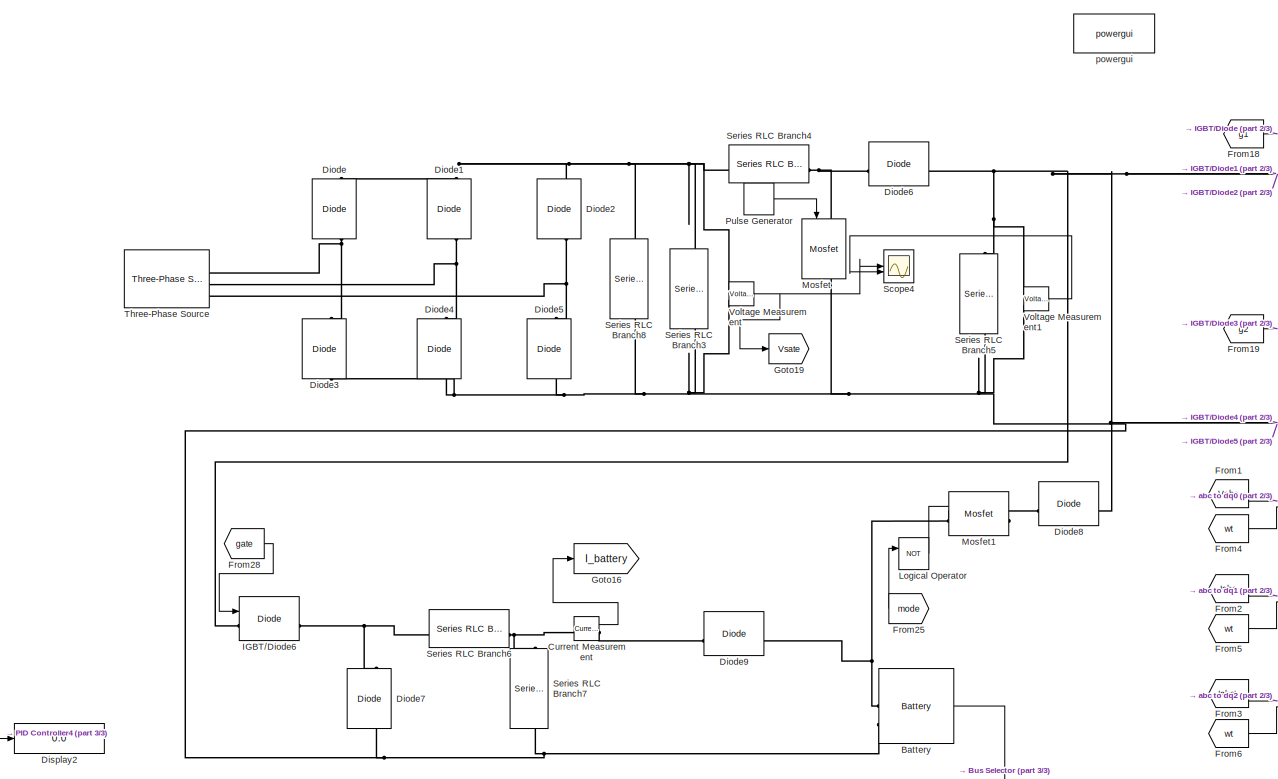
[diagram: root canvas - part 1/3, left side, full height]
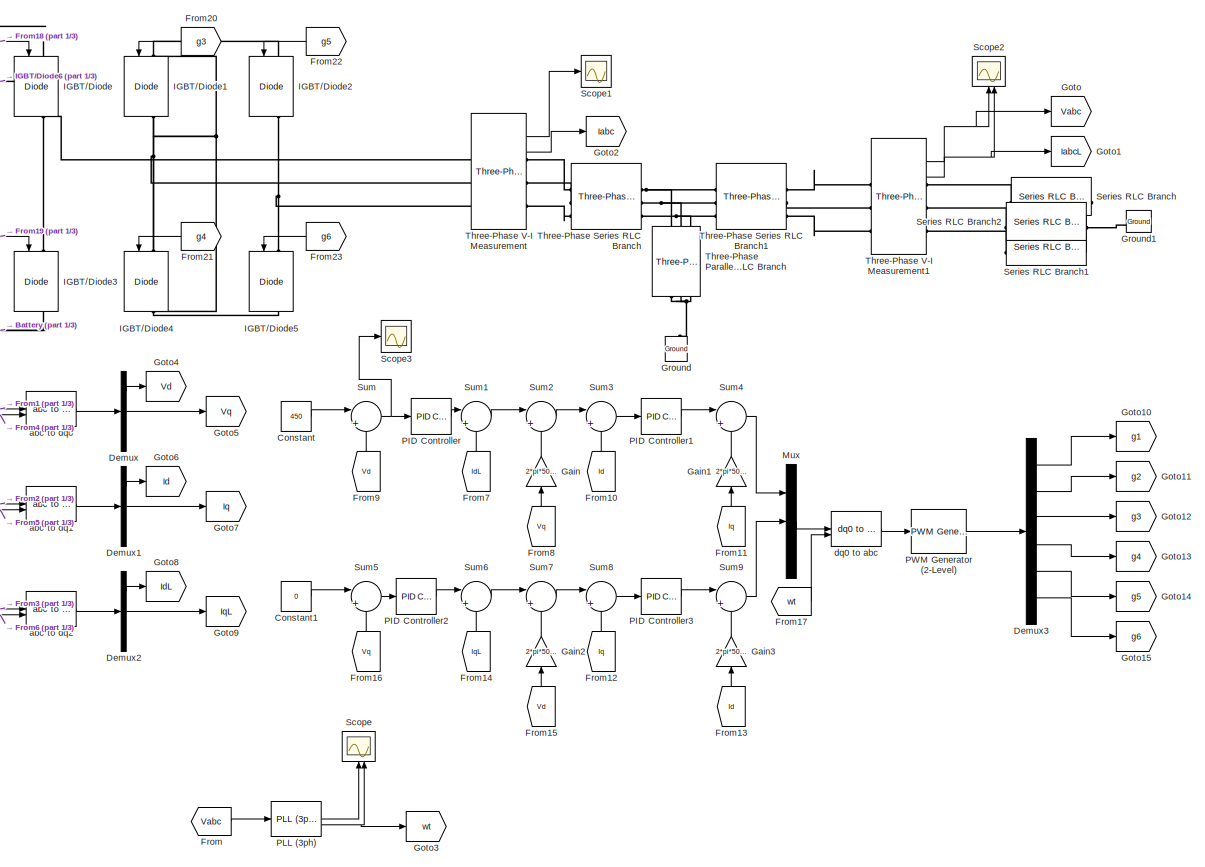
[diagram: root canvas - part 2/3, right side, full height]
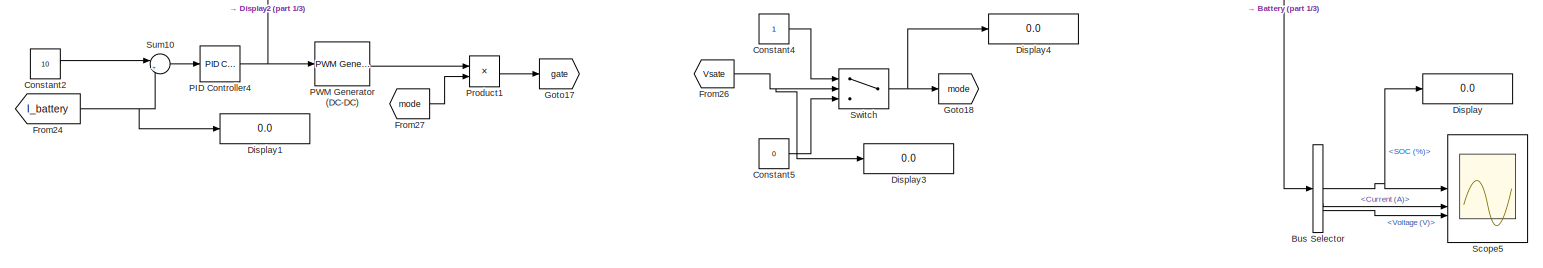
[diagram: root canvas - part 3/3, bottom left region]
MODEL slx_847b8363565b
KIND model
CONFIG AbsTol = auto
CONFIG EnableMultiTasking = off
CONFIG FixedStep = auto
CONFIG MaxStep = auto
CONFIG MinStep = auto
CONFIG RelTol = 1e-3
CONFIG SampleTimeConstraint = Unconstrained
CONFIG SolverName = VariableStepAuto
CONFIG StartTime = 0.0
CONFIG StopTime = 20
BLOCK [Reference] Battery  REF=spsBatteryLib/Battery
  LibrarySourceBlock = sps_lib/Sources/Battery
  SourceBlock = spsBatteryLib/Battery
  SourceType = Battery
BLOCK [BusSelector] Bus Selector
  OutputSignals = SOC (%),Current (A),Voltage (V)
BLOCK [Constant] Constant
  Value = 450
BLOCK [Constant] Constant1
  Value = 0
BLOCK [Constant] Constant2
  Value = 10
BLOCK [Constant] Constant4
BLOCK [Constant] Constant5
  Value = 0
BLOCK [Reference] Current Measurement  REF=spsCurrentMeasurementLib/Current Measurement
  LibrarySourceBlock = sps_lib/Sensors and Measurements/Current Measurement
  SourceBlock = spsCurrentMeasurementLib/Current Measurement
  SourceType = Current Measurement
  UserDataPersistent = on
BLOCK [Demux] Demux
  Outputs = 3
BLOCK [Demux] Demux1
  Outputs = 3
BLOCK [Demux] Demux2
  Outputs = 3
BLOCK [Demux] Demux3
  Outputs = 6
BLOCK [Reference] Diode  REF=spsDiodeLib/Diode
  LibrarySourceBlock = sps_lib/Power Electronics/Diode
  NameLocation = right
  SourceBlock = spsDiodeLib/Diode
  SourceType = Diode
BLOCK [Reference] Diode1  REF=spsDiodeLib/Diode
  LibrarySourceBlock = sps_lib/Power Electronics/Diode
  NameLocation = right
  SourceBlock = spsDiodeLib/Diode
  SourceType = Diode
BLOCK [Reference] Diode2  REF=spsDiodeLib/Diode
  LibrarySourceBlock = sps_lib/Power Electronics/Diode
  NameLocation = right
  SourceBlock = spsDiodeLib/Diode
  SourceType = Diode
BLOCK [Reference] Diode3  REF=spsDiodeLib/Diode
  LibrarySourceBlock = sps_lib/Power Electronics/Diode
  NameLocation = right
  SourceBlock = spsDiodeLib/Diode
  SourceType = Diode
BLOCK [Reference] Diode4  REF=spsDiodeLib/Diode
  LibrarySourceBlock = sps_lib/Power Electronics/Diode
  NameLocation = right
  SourceBlock = spsDiodeLib/Diode
  SourceType = Diode
BLOCK [Reference] Diode5  REF=spsDiodeLib/Diode
  LibrarySourceBlock = sps_lib/Power Electronics/Diode
  NameLocation = right
  SourceBlock = spsDiodeLib/Diode
  SourceType = Diode
BLOCK [Reference] Diode6  REF=spsDiodeLib/Diode
  LibrarySourceBlock = sps_lib/Power Electronics/Diode
  SourceBlock = spsDiodeLib/Diode
  SourceType = Diode
BLOCK [Reference] Diode7  REF=spsDiodeLib/Diode
  LibrarySourceBlock = sps_lib/Power Electronics/Diode
  NameLocation = right
  SourceBlock = spsDiodeLib/Diode
  SourceType = Diode
BLOCK [Reference] Diode8  REF=spsDiodeLib/Diode
  LibrarySourceBlock = sps_lib/Power Electronics/Diode
  SourceBlock = spsDiodeLib/Diode
  SourceType = Diode
BLOCK [Reference] Diode9  REF=spsDiodeLib/Diode
  LibrarySourceBlock = sps_lib/Power Electronics/Diode
  SourceBlock = spsDiodeLib/Diode
  SourceType = Diode
BLOCK [Display] Display
  Decimation = 1
BLOCK [Display] Display1
  Decimation = 1
BLOCK [Display] Display2
  Decimation = 1
BLOCK [Display] Display3
  Decimation = 1
BLOCK [Display] Display4
  Decimation = 1
BLOCK [From] From
  GotoTag = Vabc
BLOCK [From] From1
  GotoTag = Vabc
BLOCK [From] From10
  GotoTag = Id
  NameLocation = right
BLOCK [From] From11
  GotoTag = Iq
  NameLocation = right
BLOCK [From] From12
  GotoTag = Iq
  NameLocation = right
BLOCK [From] From13
  GotoTag = Id
  NameLocation = right
BLOCK [From] From14
  GotoTag = IqL
  NameLocation = right
BLOCK [From] From15
  GotoTag = Vd
  NameLocation = right
BLOCK [From] From16
  GotoTag = Vq
  NameLocation = right
BLOCK [From] From17
  GotoTag = wt
BLOCK [From] From18
  GotoTag = g1
BLOCK [From] From19
  GotoTag = g2
BLOCK [From] From2
  GotoTag = Iabc
BLOCK [From] From20
  GotoTag = g3
  NameLocation = top
BLOCK [From] From21
  GotoTag = g4
  NameLocation = top
BLOCK [From] From22
  GotoTag = g5
  NameLocation = top
BLOCK [From] From23
  GotoTag = g6
  NameLocation = top
BLOCK [From] From24
  GotoTag = I_battery
BLOCK [From] From25
  GotoTag = mode
  NameLocation = top
BLOCK [From] From26
  GotoTag = Vsate
BLOCK [From] From27
  GotoTag = mode
BLOCK [From] From28
  GotoTag = gate
BLOCK [From] From3
  GotoTag = IabcL
BLOCK [From] From4
  GotoTag = wt
BLOCK [From] From5
  GotoTag = wt
BLOCK [From] From6
  GotoTag = wt
BLOCK [From] From7
  GotoTag = IdL
  NameLocation = right
BLOCK [From] From8
  GotoTag = Vq
  NameLocation = right
BLOCK [From] From9
  GotoTag = Vd
  NameLocation = right
BLOCK [Gain] Gain
  Gain = 2*pi*50*9.94e-6
  NameLocation = right
BLOCK [Gain] Gain1
  Gain = 2*pi*50*10.2e-3
  NameLocation = right
BLOCK [Gain] Gain2
  Gain = 2*pi*50*9.94e-6
  NameLocation = right
BLOCK [Gain] Gain3
  Gain = 2*pi*50*10.2e-3
  NameLocation = right
BLOCK [Goto] Goto
  GotoTag = Vabc
BLOCK [Goto] Goto1
  GotoTag = IabcL
BLOCK [Goto] Goto10
  GotoTag = g1
BLOCK [Goto] Goto11
  GotoTag = g2
BLOCK [Goto] Goto12
  GotoTag = g3
BLOCK [Goto] Goto13
  GotoTag = g4
BLOCK [Goto] Goto14
  GotoTag = g5
BLOCK [Goto] Goto15
  GotoTag = g6
BLOCK [Goto] Goto16
  GotoTag = I_battery
BLOCK [Goto] Goto17
  GotoTag = gate
BLOCK [Goto] Goto18
  GotoTag = mode
BLOCK [Goto] Goto19
  GotoTag = Vsate
BLOCK [Goto] Goto2
  GotoTag = Iabc
BLOCK [Goto] Goto3
  GotoTag = wt
BLOCK [Goto] Goto4
  GotoTag = Vd
BLOCK [Goto] Goto5
  GotoTag = Vq
BLOCK [Goto] Goto6
  GotoTag = Id
BLOCK [Goto] Goto7
  GotoTag = Iq
BLOCK [Goto] Goto8
  GotoTag = IdL
BLOCK [Goto] Goto9
  GotoTag = IqL
BLOCK [Reference] Ground  REF=spsGroundLib/Ground
  LibrarySourceBlock = sps_lib/Utilities/Ground
  NameLocation = right
  SourceBlock = spsGroundLib/Ground
  SourceType = Ground
BLOCK [Reference] Ground1  REF=spsGroundLib/Ground
  LibrarySourceBlock = sps_lib/Utilities/Ground
  NameLocation = top
  SourceBlock = spsGroundLib/Ground
  SourceType = Ground
BLOCK [Reference] IGBT//Diode  REF=spsIGBTDiodeLib/IGBT//Diode
  NameLocation = left
  SourceBlock = spsIGBTDiodeLib/IGBT//Diode
  SourceType = IGBT/Diode
BLOCK [Reference] IGBT//Diode1  REF=spsIGBTDiodeLib/IGBT//Diode
  NameLocation = left
  SourceBlock = spsIGBTDiodeLib/IGBT//Diode
  SourceType = IGBT/Diode
BLOCK [Reference] IGBT//Diode2  REF=spsIGBTDiodeLib/IGBT//Diode
  NameLocation = left
  SourceBlock = spsIGBTDiodeLib/IGBT//Diode
  SourceType = IGBT/Diode
BLOCK [Reference] IGBT//Diode3  REF=spsIGBTDiodeLib/IGBT//Diode
  NameLocation = left
  SourceBlock = spsIGBTDiodeLib/IGBT//Diode
  SourceType = IGBT/Diode
BLOCK [Reference] IGBT//Diode4  REF=spsIGBTDiodeLib/IGBT//Diode
  NameLocation = left
  SourceBlock = spsIGBTDiodeLib/IGBT//Diode
  SourceType = IGBT/Diode
BLOCK [Reference] IGBT//Diode5  REF=spsIGBTDiodeLib/IGBT//Diode
  NameLocation = left
  SourceBlock = spsIGBTDiodeLib/IGBT//Diode
  SourceType = IGBT/Diode
BLOCK [Reference] IGBT//Diode6  REF=spsIGBTDiodeLib/IGBT//Diode
  NameLocation = top
  SourceBlock = spsIGBTDiodeLib/IGBT//Diode
  SourceType = IGBT/Diode
BLOCK [Logic] Logical Operator
  AllPortsSameDT = off
  Operator = NOT
  OutDataTypeStr = boolean
BLOCK [Reference] Mosfet  REF=spsMosfetLib/Mosfet
  LibrarySourceBlock = sps_lib/Power Electronics/Mosfet
  NameLocation = left
  SourceBlock = spsMosfetLib/Mosfet
  SourceType = Mosfet
BLOCK [Reference] Mosfet1  REF=spsMosfetLib/Mosfet
  LibrarySourceBlock = sps_lib/Power Electronics/Mosfet
  SourceBlock = spsMosfetLib/Mosfet
  SourceType = Mosfet
BLOCK [Mux] Mux
  DisplayOption = bar
  Inputs = 3
BLOCK [Reference] PID Controller  REF=slpidlib/PID Controller
  LibrarySourceBlock = simulink/Continuous/PID Controller
  SourceBlock = slpidlib/PID Controller
  SourceType = PID 1dof
BLOCK [Reference] PID Controller1  REF=slpidlib/PID Controller
  LibrarySourceBlock = simulink/Continuous/PID Controller
  SourceBlock = slpidlib/PID Controller
  SourceType = PID 1dof
BLOCK [Reference] PID Controller2  REF=slpidlib/PID Controller
  LibrarySourceBlock = simulink/Continuous/PID Controller
  SourceBlock = slpidlib/PID Controller
  SourceType = PID 1dof
BLOCK [Reference] PID Controller3  REF=slpidlib/PID Controller
  LibrarySourceBlock = simulink/Continuous/PID Controller
  SourceBlock = slpidlib/PID Controller
  SourceType = PID 1dof
BLOCK [Reference] PID Controller4  REF=slpidlib/PID Controller
  LibrarySourceBlock = simulink/Continuous/PID Controller
  SourceBlock = slpidlib/PID Controller
  SourceType = PID 1dof
BLOCK [Reference] PLL (3ph)  REF=spsPLL3phLib/PLL
(3ph)
  LibrarySourceBlock = sps_lib/Control/PLL\n(3ph)
  SourceBlock = spsPLL3phLib/PLL\n(3ph)
  SourceType = PLL (3ph)
BLOCK [Reference] PWM Generator (2-Level)  REF=spsPWMGenerator2LevelLib/PWM Generator
(2-Level)
  LibrarySourceBlock = sps_lib/Power Electronics/Power Electronics Control/PWM Generator\n(2-Level)
  SourceBlock = spsPWMGenerator2LevelLib/PWM Generator\n(2-Level)
  SourceType = PWM Generator (2-Level)
BLOCK [Reference] PWM Generator (DC-DC)  REF=spsPWMGeneratorDCDCLib/PWM Generator
(DC-DC)
  LibrarySourceBlock = sps_lib/Power Electronics/Power Electronics Control/PWM Generator\n(DC-DC)
  SourceBlock = spsPWMGeneratorDCDCLib/PWM Generator\n(DC-DC)
  SourceType = PWM Generator (DC-DC)
BLOCK [Product] Product1
BLOCK [DiscretePulseGenerator] Pulse Generator
  Period = 100e-6
  PulseType = Time based
  PulseWidth = 41
BLOCK [Scope] Scope
  Floating = off
  NameLocation = right
  NumInputPorts = 2
  ScopeSpecificationString = Simulink.scopes.TimeScopeBlockCfg('CurrentConfiguration', extmgr.ConfigurationSet(extmgr.Configuration('Core','General UI',true),extmgr.Configuration('Core','Source UI',true),extmgr.Configuration('Sources','WiredSimulink',true),extmgr.Configuration('Visuals','Time Domain',true,'SerializedDisplays',{struct('MinYLimReal','49.97987','MaxYLimReal','50.18119','YLabelReal','','MinYLimMag','49.97987','Ma...<+2101ch>
BLOCK [Scope] Scope1
  Floating = off
  NumInputPorts = 1
  ScopeSpecificationString = Simulink.scopes.TimeScopeBlockCfg('CurrentConfiguration', extmgr.ConfigurationSet(extmgr.Configuration('Core','General UI',true),extmgr.Configuration('Core','Source UI',true),extmgr.Configuration('Sources','WiredSimulink',true,'DataLoggingVariableName','ScopeData1'),extmgr.Configuration('Visuals','Time Domain',true,'SerializedDisplays',{struct('MinYLimReal','-886.01887','MaxYLimReal','401.27133','...<+1595ch>
BLOCK [Scope] Scope2
  Floating = off
  NameLocation = right
  NumInputPorts = 2
  ScopeSpecificationString = Simulink.scopes.TimeScopeBlockCfg('CurrentConfiguration', extmgr.ConfigurationSet(extmgr.Configuration('Core','General UI',true),extmgr.Configuration('Core','Source UI',true),extmgr.Configuration('Sources','WiredSimulink',true,'DataLoggingVariableName','ScopeData2'),extmgr.Configuration('Visuals','Time Domain',true,'SerializedDisplays',{struct('MinYLimReal','-619.58364','MaxYLimReal','615.36564','...<+2538ch>
BLOCK [Scope] Scope3
  Floating = off
  NumInputPorts = 1
  ScopeSpecificationString = Simulink.scopes.TimeScopeBlockCfg('CurrentConfiguration', extmgr.ConfigurationSet(extmgr.Configuration('Core','General UI',true),extmgr.Configuration('Core','Source UI',true),extmgr.Configuration('Sources','WiredSimulink',true,'DataLoggingVariableName','ScopeData1'),extmgr.Configuration('Visuals','Time Domain',true,'SerializedDisplays',{struct('MinYLimReal','-51.83835','MaxYLimReal','375.77376','Y...<+1480ch>
BLOCK [Scope] Scope4
  Floating = off
  NumInputPorts = 2
  ScopeSpecificationString = Simulink.scopes.TimeScopeBlockCfg('CurrentConfiguration', extmgr.ConfigurationSet(extmgr.Configuration('Core','General UI',true),extmgr.Configuration('Core','Source UI',true),extmgr.Configuration('Sources','WiredSimulink',true,'DataLoggingVariableName','ScopeData1'),extmgr.Configuration('Visuals','Time Domain',true,'SerializedDisplays',{struct('MinYLimReal','432.44905','MaxYLimReal','588.79361','Y...<+2288ch>
BLOCK [Scope] Scope5
  Floating = off
  NumInputPorts = 3
  ScopeSpecificationString = Simulink.scopes.TimeScopeBlockCfg('CurrentConfiguration', extmgr.ConfigurationSet(extmgr.Configuration('Core','General UI',true),extmgr.Configuration('Core','Source UI',true),extmgr.Configuration('Sources','WiredSimulink',true,'DataLoggingVariableName','ScopeData1'),extmgr.Configuration('Visuals','Time Domain',true,'SerializedDisplays',{struct('MinYLimReal','79.94991','MaxYLimReal','80.00557','YLa...<+3091ch>
BLOCK [Reference] Series RLC Branch  REF=spsSeriesRLCBranchLib/Series RLC Branch
  LibrarySourceBlock = sps_lib/Passives/Series RLC Branch
  SourceBlock = spsSeriesRLCBranchLib/Series RLC Branch
  SourceType = Series RLC Branch
BLOCK [Reference] Series RLC Branch1  REF=spsSeriesRLCBranchLib/Series RLC Branch
  LibrarySourceBlock = sps_lib/Passives/Series RLC Branch
  SourceBlock = spsSeriesRLCBranchLib/Series RLC Branch
  SourceType = Series RLC Branch
BLOCK [Reference] Series RLC Branch2  REF=spsSeriesRLCBranchLib/Series RLC Branch
  LibrarySourceBlock = sps_lib/Passives/Series RLC Branch
  SourceBlock = spsSeriesRLCBranchLib/Series RLC Branch
  SourceType = Series RLC Branch
BLOCK [Reference] Series RLC Branch3  REF=spsSeriesRLCBranchLib/Series RLC Branch
  LibrarySourceBlock = sps_lib/Passives/Series RLC Branch
  NameLocation = left
  SourceBlock = spsSeriesRLCBranchLib/Series RLC Branch
  SourceType = Series RLC Branch
BLOCK [Reference] Series RLC Branch4  REF=spsSeriesRLCBranchLib/Series RLC Branch
  LibrarySourceBlock = sps_lib/Passives/Series RLC Branch
  SourceBlock = spsSeriesRLCBranchLib/Series RLC Branch
  SourceType = Series RLC Branch
BLOCK [Reference] Series RLC Branch5  REF=spsSeriesRLCBranchLib/Series RLC Branch
  LibrarySourceBlock = sps_lib/Passives/Series RLC Branch
  NameLocation = left
  SourceBlock = spsSeriesRLCBranchLib/Series RLC Branch
  SourceType = Series RLC Branch
BLOCK [Reference] Series RLC Branch6  REF=spsSeriesRLCBranchLib/Series RLC Branch
  LibrarySourceBlock = sps_lib/Passives/Series RLC Branch
  SourceBlock = spsSeriesRLCBranchLib/Series RLC Branch
  SourceType = Series RLC Branch
BLOCK [Reference] Series RLC Branch7  REF=spsSeriesRLCBranchLib/Series RLC Branch
  LibrarySourceBlock = sps_lib/Passives/Series RLC Branch
  NameLocation = left
  SourceBlock = spsSeriesRLCBranchLib/Series RLC Branch
  SourceType = Series RLC Branch
BLOCK [Reference] Series RLC Branch8  REF=spsSeriesRLCBranchLib/Series RLC Branch
  LibrarySourceBlock = sps_lib/Passives/Series RLC Branch
  NameLocation = left
  SourceBlock = spsSeriesRLCBranchLib/Series RLC Branch
  SourceType = Series RLC Branch
BLOCK [Sum] Sum
  Inputs = |+-
BLOCK [Sum] Sum1
  Inputs = |+-
BLOCK [Sum] Sum10
  Inputs = |+-
BLOCK [Sum] Sum2
  Inputs = |+-
BLOCK [Sum] Sum3
  Inputs = |+-
BLOCK [Sum] Sum4
  Inputs = |+-
BLOCK [Sum] Sum5
  Inputs = |+-
BLOCK [Sum] Sum6
  Inputs = |++
BLOCK [Sum] Sum7
  Inputs = |++
BLOCK [Sum] Sum8
  Inputs = |+-
BLOCK [Sum] Sum9
  Inputs = |++
BLOCK [Switch] Switch
  InputSameDT = off
  SaturateOnIntegerOverflow = off
  Threshold = 500
BLOCK [Reference] Three-Phase Parallel RLC Branch  REF=spsThreePhaseParallelRLCBranchLib/Three-Phase
Parallel RLC Branch
  AttributesFormatString = \n
  LibrarySourceBlock = sps_lib/Passives/Three-Phase\nParallel RLC Branch
  NameLocation = left
  SourceBlock = spsThreePhaseParallelRLCBranchLib/Three-Phase\nParallel RLC Branch
  SourceType = Three-Phase Parallel RLC Branch
BLOCK [Reference] Three-Phase Series RLC Branch  REF=spsThreePhaseSeriesRLCBranchLib/Three-Phase
Series RLC Branch
  AttributesFormatString = \n
  LibrarySourceBlock = sps_lib/Passives/Three-Phase\nSeries RLC Branch
  SourceBlock = spsThreePhaseSeriesRLCBranchLib/Three-Phase\nSeries RLC Branch
  SourceType = Three-Phase Series RLC Branch
BLOCK [Reference] Three-Phase Series RLC Branch1  REF=spsThreePhaseSeriesRLCBranchLib/Three-Phase
Series RLC Branch
  AttributesFormatString = \n
  LibrarySourceBlock = sps_lib/Passives/Three-Phase\nSeries RLC Branch
  SourceBlock = spsThreePhaseSeriesRLCBranchLib/Three-Phase\nSeries RLC Branch
  SourceType = Three-Phase Series RLC Branch
BLOCK [Reference] Three-Phase Source  REF=spsThreePhaseSourceLib/Three-Phase Source
  LibrarySourceBlock = sps_lib/Sources/Three-Phase Source
  SourceBlock = spsThreePhaseSourceLib/Three-Phase Source
  SourceType = Three-Phase Source
BLOCK [Reference] Three-Phase V-I Measurement  REF=spsThreePhaseVIMeasurementLib/Three-Phase
V-I Measurement
  LibrarySourceBlock = sps_lib/Sensors and Measurements/Three-Phase\nV-I Measurement
  SourceBlock = spsThreePhaseVIMeasurementLib/Three-Phase\nV-I Measurement
  SourceType = Three-Phase VI Measurement
BLOCK [Reference] Three-Phase V-I Measurement1  REF=spsThreePhaseVIMeasurementLib/Three-Phase
V-I Measurement
  LibrarySourceBlock = sps_lib/Sensors and Measurements/Three-Phase\nV-I Measurement
  SourceBlock = spsThreePhaseVIMeasurementLib/Three-Phase\nV-I Measurement
  SourceType = Three-Phase VI Measurement
BLOCK [Reference] Voltage Measurement  REF=spsVoltageMeasurementLib/Voltage Measurement
  LibrarySourceBlock = sps_lib/Sensors and Measurements/Voltage Measurement
  SourceBlock = spsVoltageMeasurementLib/Voltage Measurement
  SourceType = Voltage Measurement
  UserDataPersistent = on
BLOCK [Reference] Voltage Measurement1  REF=spsVoltageMeasurementLib/Voltage Measurement
  LibrarySourceBlock = sps_lib/Sensors and Measurements/Voltage Measurement
  SourceBlock = spsVoltageMeasurementLib/Voltage Measurement
  SourceType = Voltage Measurement
  UserDataPersistent = on
BLOCK [Reference] abc to dq0  REF=spsabctodq0Lib/abc to dq0
  LibrarySourceBlock = sps_lib/Control/abc to dq0
  SourceBlock = spsabctodq0Lib/abc to dq0
  SourceType = abc to dq0 Transformation
BLOCK [Reference] abc to dq1  REF=spsabctodq0Lib/abc to dq0
  LibrarySourceBlock = sps_lib/Control/abc to dq0
  SourceBlock = spsabctodq0Lib/abc to dq0
  SourceType = abc to dq0 Transformation
BLOCK [Reference] abc to dq2  REF=spsabctodq0Lib/abc to dq0
  LibrarySourceBlock = sps_lib/Control/abc to dq0
  SourceBlock = spsabctodq0Lib/abc to dq0
  SourceType = abc to dq0 Transformation
BLOCK [Reference] dq0 to abc  REF=spsdq0toabcLib/dq0 to abc
  LibrarySourceBlock = sps_lib/Control/dq0 to abc
  SourceBlock = spsdq0toabcLib/dq0 to abc
  SourceType = dq0 to abc Transformation
BLOCK [Reference] powergui  REF=sps_lib/powergui
  LibrarySourceBlock = sps_lib/powergui
  Priority = 1
  SourceBlock = sps_lib/powergui
  SourceType = PSB option menu block
LINE Battery:1 -> Bus Selector:1
NET Bus Selector:1 -> Display:1, Scope5:1
LINE Bus Selector:2 -> Scope5:2
LINE Bus Selector:3 -> Scope5:3
LINE Constant1:1 -> Sum5:1
LINE Constant2:1 -> Sum10:1
LINE Constant4:1 -> Switch:1
LINE Constant5:1 -> Switch:3
LINE Constant:1 -> Sum:1
LINE Current Measurement:1 -> Goto16:1
LINE Demux1:1 -> Goto6:1
LINE Demux1:2 -> Goto7:1
LINE Demux2:1 -> Goto8:1
LINE Demux2:2 -> Goto9:1
LINE Demux3:1 -> Goto10:1
LINE Demux3:2 -> Goto11:1
LINE Demux3:3 -> Goto12:1
LINE Demux3:4 -> Goto13:1
LINE Demux3:5 -> Goto14:1
LINE Demux3:6 -> Goto15:1
LINE Demux:1 -> Goto4:1
LINE Demux:2 -> Goto5:1
LINE From10:1 -> Sum3:2
LINE From11:1 -> Gain1:1
LINE From12:1 -> Sum8:2
LINE From13:1 -> Gain3:1
LINE From14:1 -> Sum6:2
LINE From15:1 -> Gain2:1
LINE From16:1 -> Sum5:2
LINE From17:1 -> dq0 to abc:2
LINE From18:1 -> IGBT//Diode:1
LINE From19:1 -> IGBT//Diode3:1
LINE From1:1 -> abc to dq0:1
LINE From20:1 -> IGBT//Diode1:1
LINE From21:1 -> IGBT//Diode4:1
LINE From22:1 -> IGBT//Diode2:1
LINE From23:1 -> IGBT//Diode5:1
NET From24:1 -> Display1:1, Sum10:2
LINE From25:1 -> Logical Operator:1
NET From26:1 -> Display3:1, Switch:2
LINE From27:1 -> Product1:2
LINE From28:1 -> IGBT//Diode6:1
LINE From2:1 -> abc to dq1:1
LINE From3:1 -> abc to dq2:1
LINE From4:1 -> abc to dq0:2
LINE From5:1 -> abc to dq1:2
LINE From6:1 -> abc to dq2:2
LINE From7:1 -> Sum1:2
LINE From8:1 -> Gain:1
LINE From9:1 -> Sum:2
LINE From:1 -> PLL (3ph):1
LINE Gain1:1 -> Sum4:2
LINE Gain2:1 -> Sum7:2
LINE Gain3:1 -> Sum9:2
LINE Gain:1 -> Sum2:2
LINE Logical Operator:1 -> Mosfet1:1
LINE Mux:1 -> dq0 to abc:1
LINE PID Controller1:1 -> Sum4:1
LINE PID Controller2:1 -> Sum6:1
LINE PID Controller3:1 -> Sum9:1
NET PID Controller4:1 -> Display2:1, PWM Generator (DC-DC):1
LINE PID Controller:1 -> Sum1:1
LINE PLL (3ph):1 -> Scope:1
NET PLL (3ph):2 -> Goto3:1, Scope:2
LINE PWM Generator (2-Level):1 -> Demux3:1
LINE PWM Generator (DC-DC):1 -> Product1:1
LINE Product1:1 -> Goto17:1
LINE Pulse Generator:1 -> Mosfet:1
LINE Sum10:1 -> PID Controller4:1
LINE Sum1:1 -> Sum2:1
LINE Sum2:1 -> Sum3:1
LINE Sum3:1 -> PID Controller1:1
LINE Sum4:1 -> Mux:1
LINE Sum5:1 -> PID Controller2:1
LINE Sum6:1 -> Sum7:1
LINE Sum7:1 -> Sum8:1
LINE Sum8:1 -> PID Controller3:1
LINE Sum9:1 -> Mux:2
NET Sum:1 -> PID Controller:1, Scope3:1
NET Switch:1 -> Display4:1, Goto18:1
NET Three-Phase V-I Measurement1:1 -> Goto:1, Scope2:1
NET Three-Phase V-I Measurement1:2 -> Goto1:1, Scope2:2
LINE Three-Phase V-I Measurement:1 -> Scope1:1
LINE Three-Phase V-I Measurement:2 -> Goto2:1
LINE Voltage Measurement1:1 -> Scope4:2
NET Voltage Measurement:1 -> Goto19:1, Scope4:1
LINE abc to dq0:1 -> Demux:1
LINE abc to dq1:1 -> Demux1:1
LINE abc to dq2:1 -> Demux2:1
LINE dq0 to abc:1 -> PWM Generator (2-Level):1
PNET net1: Battery:LConn1 -- Diode9:RConn1 -- Mosfet1:LConn1
PNET net2: Battery:LConn2 -- Diode3:LConn1 -- Diode4:LConn1 -- Diode5:LConn1 -- Diode7:LConn1 -- IGBT//Diode3:RConn1 -- IGBT//Diode4:RConn1 -- IGBT//Diode5:RConn1 -- Mosfet:RConn1 -- Series RLC Branch3:RConn1 -- Series RLC Branch5:RConn1 -- Series RLC Branch7:RConn1 -- Series RLC Branch8:RConn1 -- Voltage Measurement1:LConn2 -- Voltage Measurement:LConn2
PNET net3: Current Measurement:LConn1 -- Series RLC Branch6:RConn1 -- Series RLC Branch7:LConn1
PLINE Current Measurement:RConn1 -- Diode9:LConn1
PNET net4: Diode1:LConn1 -- Diode4:RConn1 -- Three-Phase Source:RConn2
PNET net5: Diode1:RConn1 -- Diode2:RConn1 -- Diode:RConn1 -- Series RLC Branch3:LConn1 -- Series RLC Branch4:LConn1 -- Series RLC Branch8:LConn1 -- Voltage Measurement:LConn1
PNET net6: Diode2:LConn1 -- Diode5:RConn1 -- Three-Phase Source:RConn3
PNET net7: Diode3:RConn1 -- Diode:LConn1 -- Three-Phase Source:RConn1
PNET net8: Diode6:LConn1 -- Mosfet:LConn1 -- Series RLC Branch4:RConn1
PNET net9: Diode6:RConn1 -- Diode8:RConn1 -- IGBT//Diode1:LConn1 -- IGBT//Diode2:LConn1 -- IGBT//Diode6:LConn1 -- IGBT//Diode:LConn1 -- Series RLC Branch5:LConn1 -- Voltage Measurement1:LConn1
PNET net10: Diode7:RConn1 -- IGBT//Diode6:RConn1 -- Series RLC Branch6:LConn1
PLINE Diode8:LConn1 -- Mosfet1:RConn1
PNET net11: Ground1:LConn1 -- Series RLC Branch1:RConn1 -- Series RLC Branch2:RConn1 -- Series RLC Branch:RConn1
PNET net12: Ground:LConn1 -- Three-Phase Parallel RLC Branch:RConn1 -- Three-Phase Parallel RLC Branch:RConn2 -- Three-Phase Parallel RLC Branch:RConn3
PNET net13: IGBT//Diode1:RConn1 -- IGBT//Diode4:LConn1 -- Three-Phase V-I Measurement:LConn2
PNET net14: IGBT//Diode2:RConn1 -- IGBT//Diode5:LConn1 -- Three-Phase V-I Measurement:LConn3
PNET net15: IGBT//Diode3:LConn1 -- IGBT//Diode:RConn1 -- Three-Phase V-I Measurement:LConn1
PLINE Series RLC Branch1:LConn1 -- Three-Phase V-I Measurement1:RConn3
PLINE Series RLC Branch2:LConn1 -- Three-Phase V-I Measurement1:RConn2
PLINE Series RLC Branch:LConn1 -- Three-Phase V-I Measurement1:RConn1
PNET net16: Three-Phase Parallel RLC Branch:LConn1 -- Three-Phase Series RLC Branch1:LConn1 -- Three-Phase Series RLC Branch:RConn1
PNET net17: Three-Phase Parallel RLC Branch:LConn2 -- Three-Phase Series RLC Branch1:LConn2 -- Three-Phase Series RLC Branch:RConn2
PNET net18: Three-Phase Parallel RLC Branch:LConn3 -- Three-Phase Series RLC Branch1:LConn3 -- Three-Phase Series RLC Branch:RConn3
PLINE Three-Phase Series RLC Branch1:RConn1 -- Three-Phase V-I Measurement1:LConn1
PLINE Three-Phase Series RLC Branch1:RConn2 -- Three-Phase V-I Measurement1:LConn2
PLINE Three-Phase Series RLC Branch1:RConn3 -- Three-Phase V-I Measurement1:LConn3
PLINE Three-Phase Series RLC Branch:LConn1 -- Three-Phase V-I Measurement:RConn1
PLINE Three-Phase Series RLC Branch:LConn2 -- Three-Phase V-I Measurement:RConn2
PLINE Three-Phase Series RLC Branch:LConn3 -- Three-Phase V-I Measurement:RConn3
note: NET lines group one-source signal fan-out (src -> all destinations, sorted); 1:1 wires keep LINE; PNET lines group multi-terminal physical nets as a canonical sorted terminal list (undirected conserving connections); 2-terminal nets keep the pairwise PLINE form
